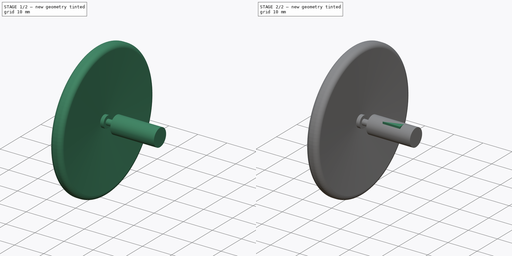
[diagram: build sequence overview — one tinted view per stage of 2, left to right]
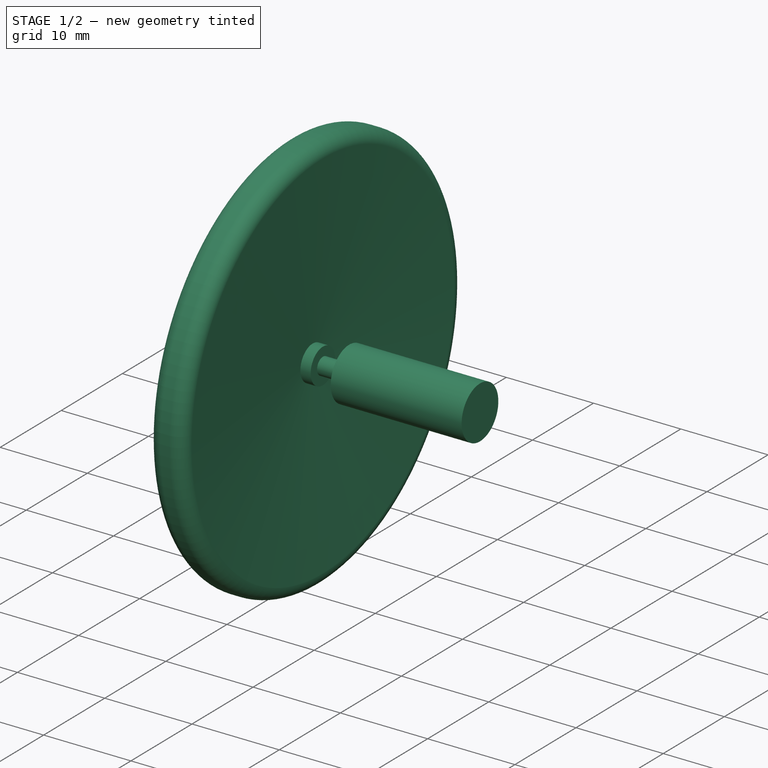
[diagram: stage 1 of 2 — iso view after this stage's code; geometry added in this stage tinted green]
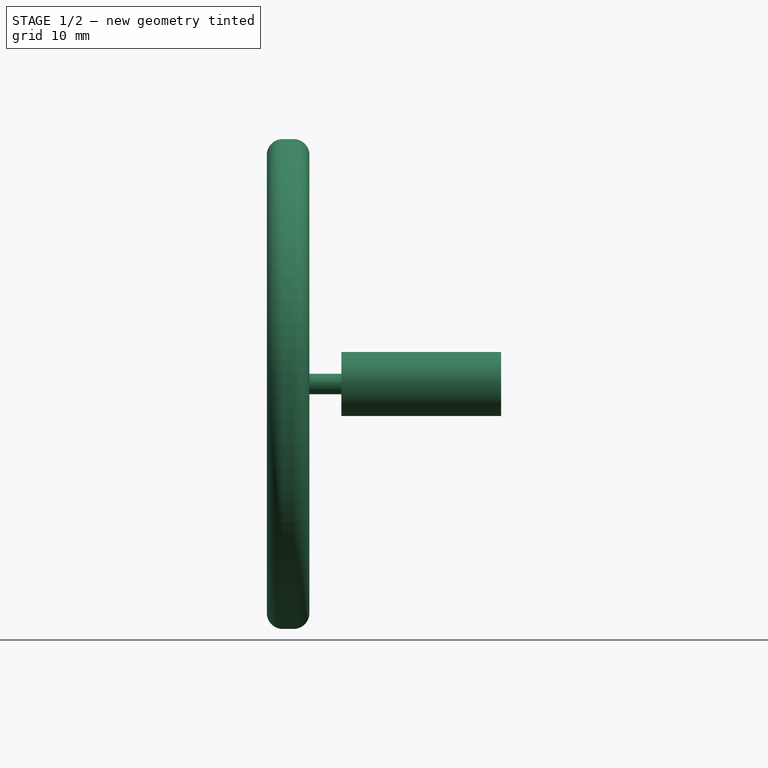
[diagram: stage 1 of 2 — front view after this stage's code; geometry added in this stage tinted green]
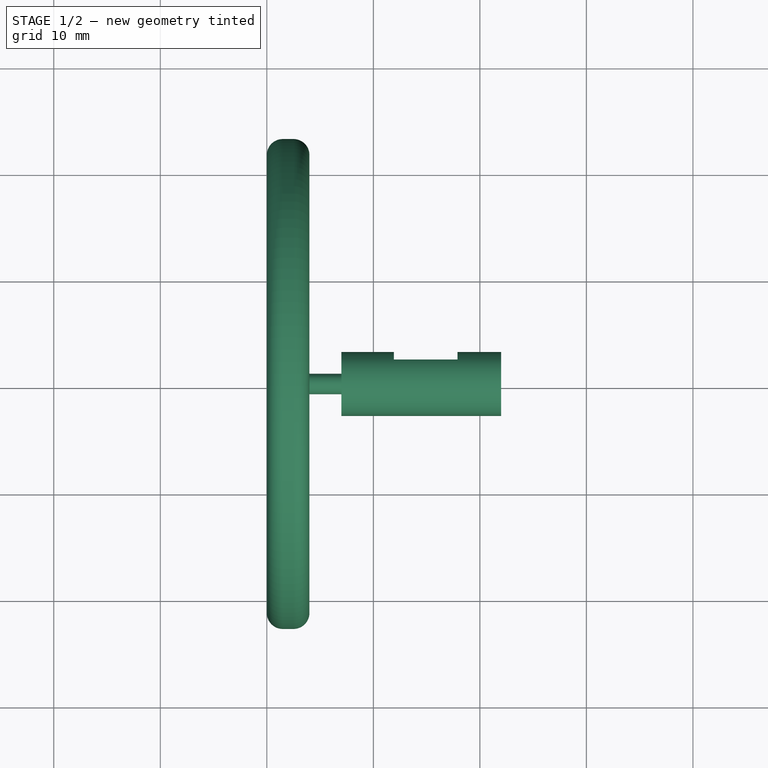
[diagram: stage 1 of 2 — top view after this stage's code; geometry added in this stage tinted green]
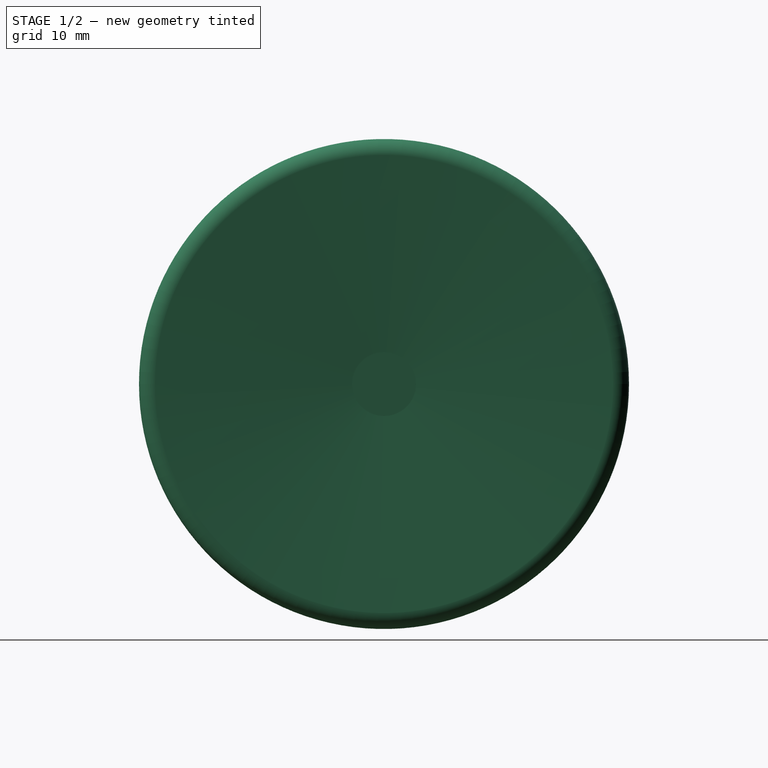
[diagram: stage 1 of 2 — right view after this stage's code; geometry added in this stage tinted green]
FCSTD DOCUMENT  (FreeCAD 1.0R39109 (Git))
Label: motor_A
License: All rights reserved
LicenseURL: https://en.wikipedia.org/wiki/All_rights_reserved
objects: Sketcher::SketchObject×3, PartDesign::Revolution×1, PartDesign::Pocket×1, PartDesign::Pad×1, PartDesign::Body×1
note: 16 computed .brp shape members not serialized (recipe doc carries the construction recipe); baked Part::Feature solids carry a one-line shape summary decoded from their .brp

FEATURE [Sketcher::SketchObject] Sketch
  ArcFitTolerance = 1e-06
  AttachmentSupport = -> [XY_Plane]
  FullyConstrained = false
  MakeInternals = false
  MapMode = 5
  sketch-geometry (16):
    g0: LineSegment StartX=1.5 StartY=23 StartZ=0 EndX=2.5 EndY=23 EndZ=0
    g1: LineSegment StartX=4 StartY=0.960387 StartZ=0 EndX=7 EndY=0.960387 EndZ=0
    g2: LineSegment StartX=7 StartY=0.960387 StartZ=0 EndX=7 EndY=3 EndZ=0
    g3: LineSegment StartX=7 StartY=3 StartZ=0 EndX=22 EndY=3 EndZ=0
    g4: LineSegment StartX=22 StartY=3 StartZ=0 EndX=22 EndY=0 EndZ=0
    g5: LineSegment StartX=22 StartY=0 StartZ=0 EndX=0 EndY=0 EndZ=0
    g6: ArcOfCircle CenterX=1.5 CenterY=21.5 CenterZ=0 NormalX=0 NormalY=0 NormalZ=1 AngleXU=0 Radius=1.5 StartAngle=1.5708 EndAngle=3.14159
    g7: GeomPoint [constr] X=0 Y=23 Z=0
    g8: ArcOfCircle CenterX=2.5 CenterY=21.5 CenterZ=0 NormalX=0 NormalY=0 NormalZ=1 AngleXU=0 Radius=1.5 StartAngle=-2.7e-15 EndAngle=1.5708
    g9: GeomPoint [constr] X=4 Y=23 Z=0
    g10: LineSegment StartX=0 StartY=0 StartZ=0 EndX=0 EndY=2 EndZ=0
    g11: LineSegment StartX=0 StartY=2 StartZ=0 EndX=1.17975 EndY=2 EndZ=0
    g12: LineSegment StartX=1.17975 StartY=2 StartZ=0 EndX=1.6e-15 EndY=21.5 EndZ=0
    g13: LineSegment StartX=4 StartY=0.960387 StartZ=0 EndX=4 EndY=2 EndZ=0
    g14: LineSegment StartX=4 StartY=2 StartZ=0 EndX=2.82025 EndY=2 EndZ=0
    g15: LineSegment StartX=2.82025 StartY=2 StartZ=0 EndX=4 EndY=21.5 EndZ=0
  constraints (40):
    c: PointOnObject(g7,g-2)
    c: Horizontal(g0)
    c: Horizontal(g1)
    c: Coincident(g2,g1)
    c: Vertical(g2)
    c: Coincident(g3,g2)
    c: Horizontal(g3)
    c: Coincident(g4,g3)
    c: PointOnObject(g4,g-1)
    c: Vertical(g4)
    c: Coincident(g5,g4)
    c: DistanceY(g-1,g7) = 23
    c: DistanceY(g4,g4) = 3
    c: DistanceX(g3,g3) = 15
    c: DistanceX(g1,g1) = 3
    c: DistanceX(g7,g9) = 4
    c: PointOnObject(g7,g0)
    c: Tangent(g0,g6) = 1.5708
    c: PointOnObject(g9,g0)
    c: Tangent(g0,g8) = 1.5708
    c: Horizontal(g6,g8)
    c: Distance(g8,g6) = 1
    c: Coincident(g10,g5)
    c: PointOnObject(g10,g-2)
    c: Vertical(g10)
    c: Coincident(g11,g10)
    c: Horizontal(g11)
    c: Coincident(g12,g11)
    c: Coincident(g12,g6)
    c: Coincident(g13,g1)
    c: Vertical(g13)
    c: Horizontal(g11,g13)
    c: Coincident(g14,g13)
    c: Horizontal(g14)
    c: Coincident(g15,g8)
    c: Distance(g10,g10) = 2
    c: Coincident(g15,g14)
    c: Horizontal(g5)
    c: Equal(g14,g11)
    c: Vertical(g13,g9)
FEATURE [PartDesign::Revolution] Revolution
  Angle = 360
  Angle2 = 60
  Axis = (1,0,0)
  Base = (0,0,0)
  Profile = -> Sketch
  ReferenceAxis = -> X_Axis
  Refine = true
  Suppressed = false
  Type = 0
FEATURE [Sketcher::SketchObject] Sketch001
  ArcFitTolerance = 1e-06
  AttachmentOffset = pos=(0,0,10) rot=(0,0,1;0rad)
  AttachmentSupport = -> [XY_Plane]
  ExternalGeometry = -> [Revolution]
  FullyConstrained = false
  MakeInternals = false
  MapMode = 5
  Placement = pos=(0,0,10) rot=(0,0,1;0rad)
  sketch-geometry (4):
    g0: LineSegment StartX=11.9306 StartY=3 StartZ=0 EndX=11.9306 EndY=2.26946 EndZ=0
    g1: LineSegment StartX=11.9306 StartY=2.26946 StartZ=0 EndX=17.8998 EndY=2.26946 EndZ=0
    g2: LineSegment StartX=17.8998 StartY=2.26946 StartZ=0 EndX=17.8998 EndY=3 EndZ=0
    g3: LineSegment StartX=17.8998 StartY=3 StartZ=0 EndX=11.9306 EndY=3 EndZ=0
  constraints (9):
    c: Coincident(g0,g1)
    c: Coincident(g1,g2)
    c: Coincident(g2,g3)
    c: Coincident(g3,g0)
    c: Vertical(g0)
    c: Vertical(g2)
    c: Horizontal(g1)
    c: Horizontal(g3)
    c: PointOnObject(g0,g-3)
FEATURE [PartDesign::Pocket] Pocket
  BaseFeature = -> Revolution
  Direction = (0,0,-1)
  Length = 5
  Length2 = 5
  Profile = -> Sketch001
  ReferenceAxis = -> Sketch001 [N_Axis]
  Refine = true
  Suppressed = false
  Type = 1
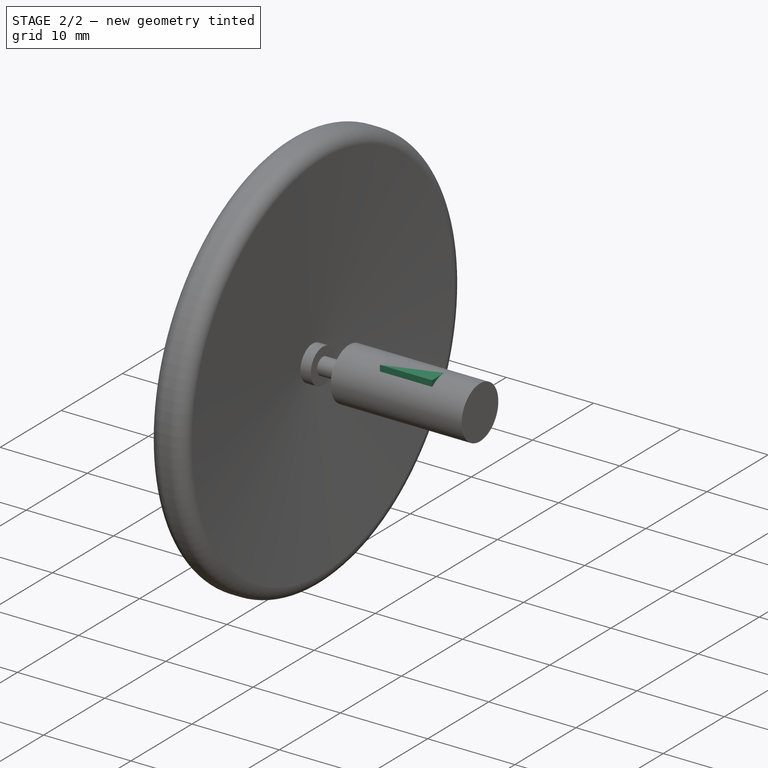
[diagram: stage 2 of 2 — iso view after this stage's code; geometry added in this stage tinted green]
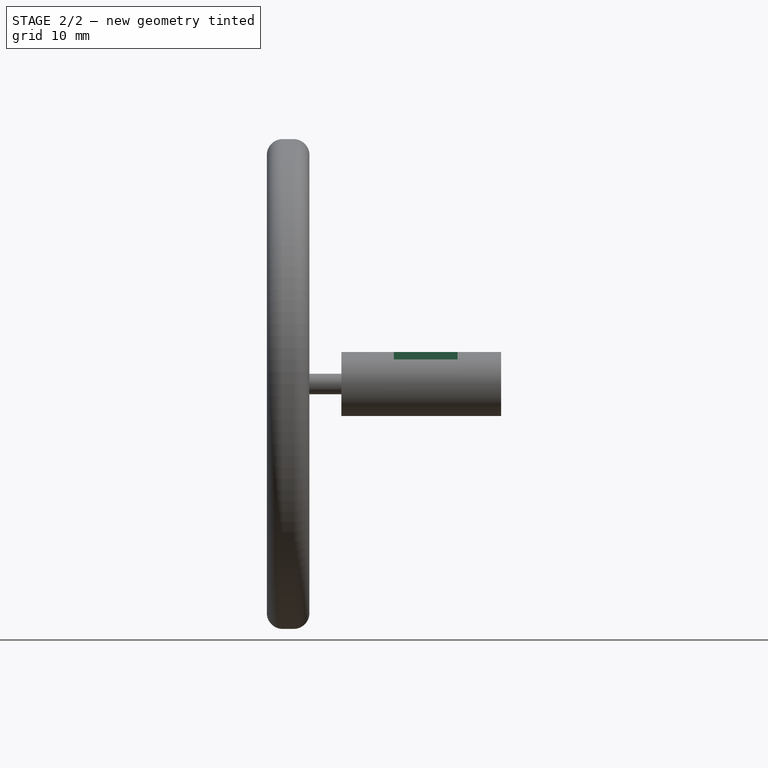
[diagram: stage 2 of 2 — front view after this stage's code; geometry added in this stage tinted green]
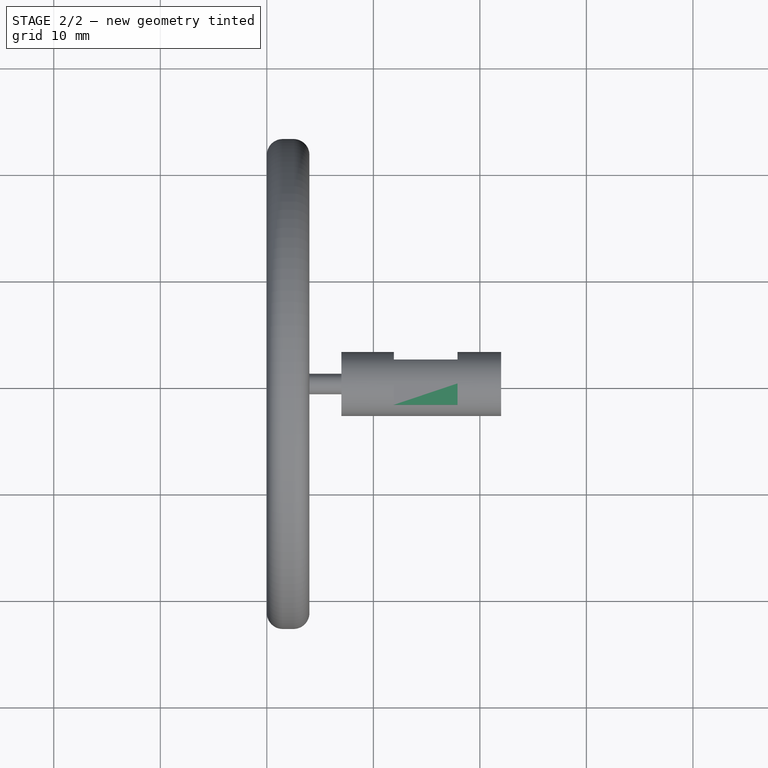
[diagram: stage 2 of 2 — top view after this stage's code; geometry added in this stage tinted green]
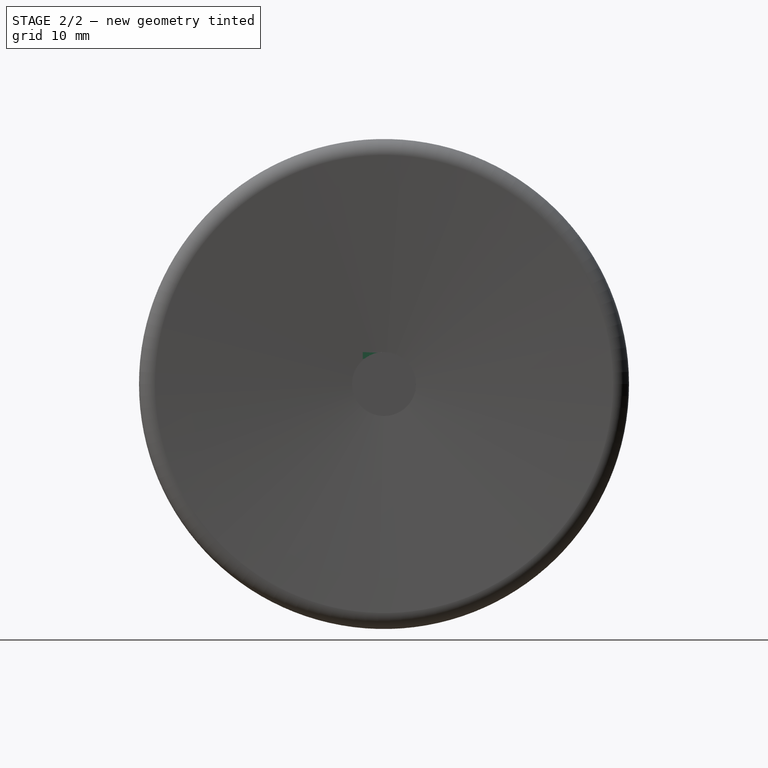
[diagram: stage 2 of 2 — right view after this stage's code; geometry added in this stage tinted green]
FEATURE [Sketcher::SketchObject] Sketch002
  ArcFitTolerance = 1e-06
  AttachmentSupport = -> [XZ_Plane]
  ExternalGeometry = -> [Pocket]
  FullyConstrained = false
  MakeInternals = false
  MapMode = 5
  Placement = pos=(0,0,0) rot=(1,0,0;1.5708rad)
  sketch-geometry (6):
    g0: LineSegment [constr] StartX=7 StartY=3 StartZ=0 EndX=11.9306 EndY=3 EndZ=0
    g1: LineSegment StartX=11.9306 StartY=3 StartZ=0 EndX=17.8998 EndY=3 EndZ=0
    g2: LineSegment [constr] StartX=17.8998 StartY=3 StartZ=0 EndX=22 EndY=3 EndZ=0
    g3: LineSegment StartX=11.9306 StartY=3 StartZ=0 EndX=11.9306 EndY=2.31603 EndZ=0
    g4: LineSegment StartX=11.9306 StartY=2.31603 StartZ=0 EndX=17.8998 EndY=2.31603 EndZ=0
    g5: LineSegment StartX=17.8998 StartY=2.31603 StartZ=0 EndX=17.8998 EndY=3 EndZ=0
  constraints (15):
    c: Coincident(g0,g-4)
    c: Horizontal(g0)
    c: Coincident(g1,g0)
    c: Horizontal(g1)
    c: Coincident(g2,g1)
    c: Coincident(g2,g-3)
    c: Vertical(g0,g-6)
    c: Vertical(g1,g-5)
    c: Coincident(g3,g0)
    c: Vertical(g3)
    c: Coincident(g4,g3)
    c: Horizontal(g4)
    c: Coincident(g5,g4)
    c: Coincident(g5,g1)
    c: Vertical(g5)
FEATURE [PartDesign::Pad] Pad
  BaseFeature = -> Pocket
  Direction = (0,-1,2e-16)
  Length = 2
  Length2 = 10
  Profile = -> Sketch002
  ReferenceAxis = -> Sketch002 [N_Axis]
  Refine = true
  Suppressed = false
  Type = 0
FEATURE [PartDesign::Body] Body
  AllowCompound = false
  Group = -> [Sketch,Revolution,Sketch001,Pocket,Sketch002,Pad]
  Origin = -> Origin
  Tip = -> Pad
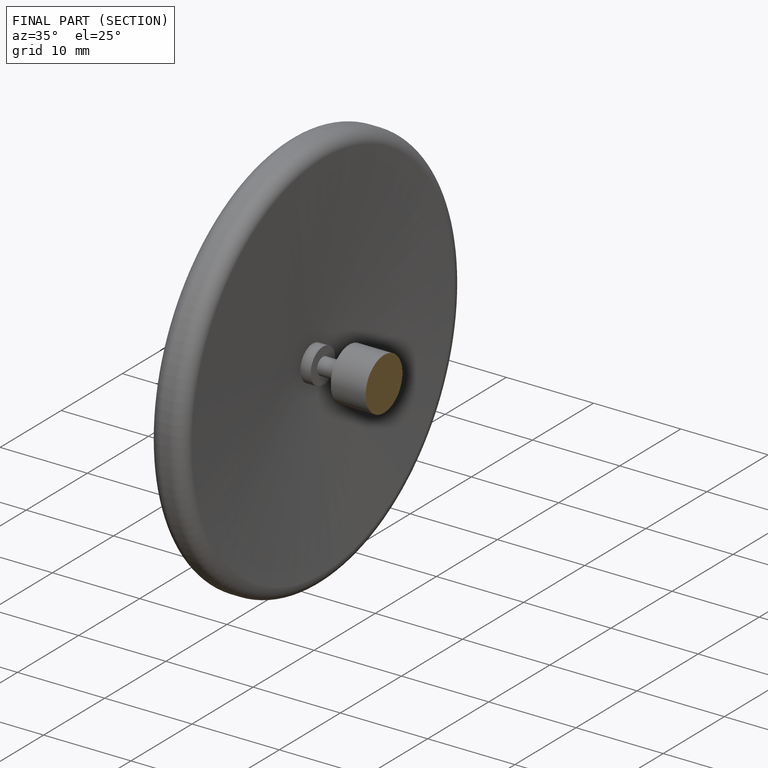
[diagram: finished part — half-section view (interior)]
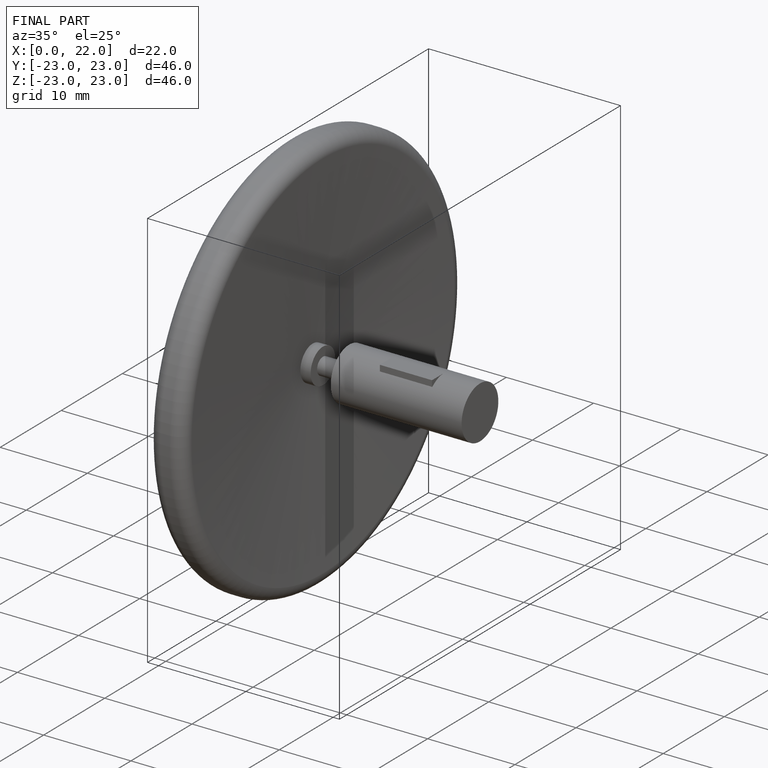
[diagram: finished part — iso view with bounding-box wireframe]
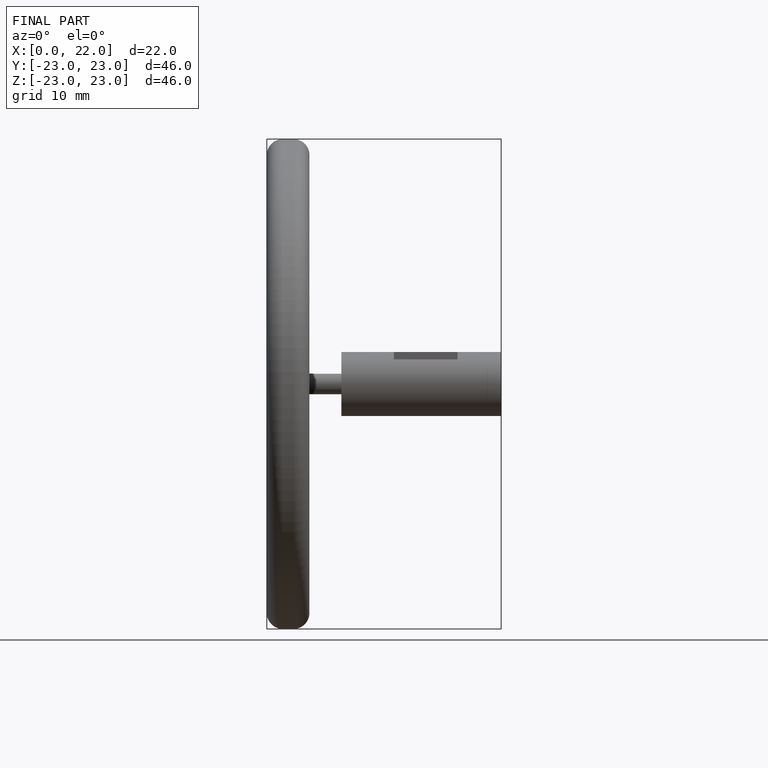
[diagram: finished part — front view with bounding-box wireframe]
